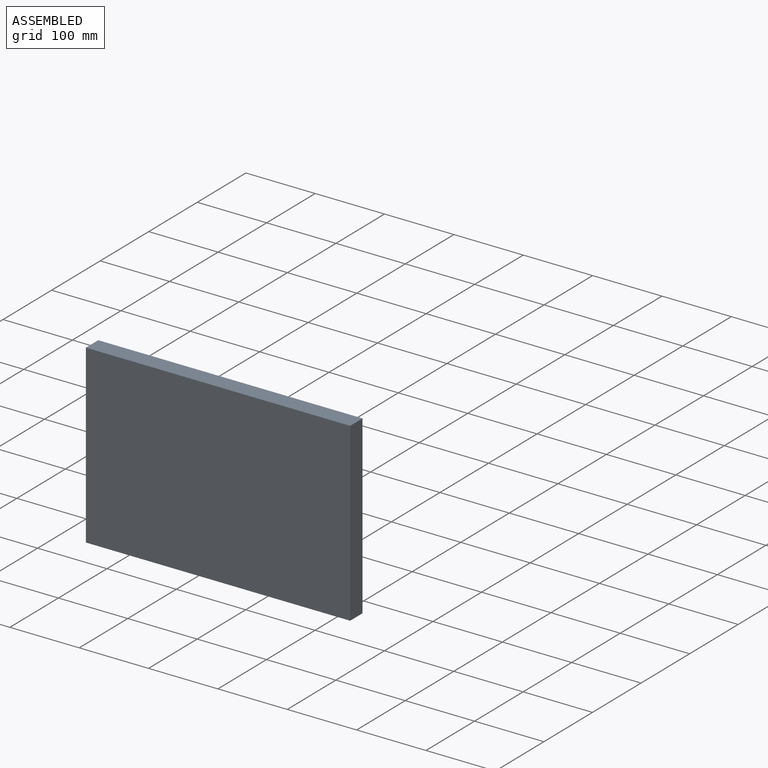
[diagram: assembled view]
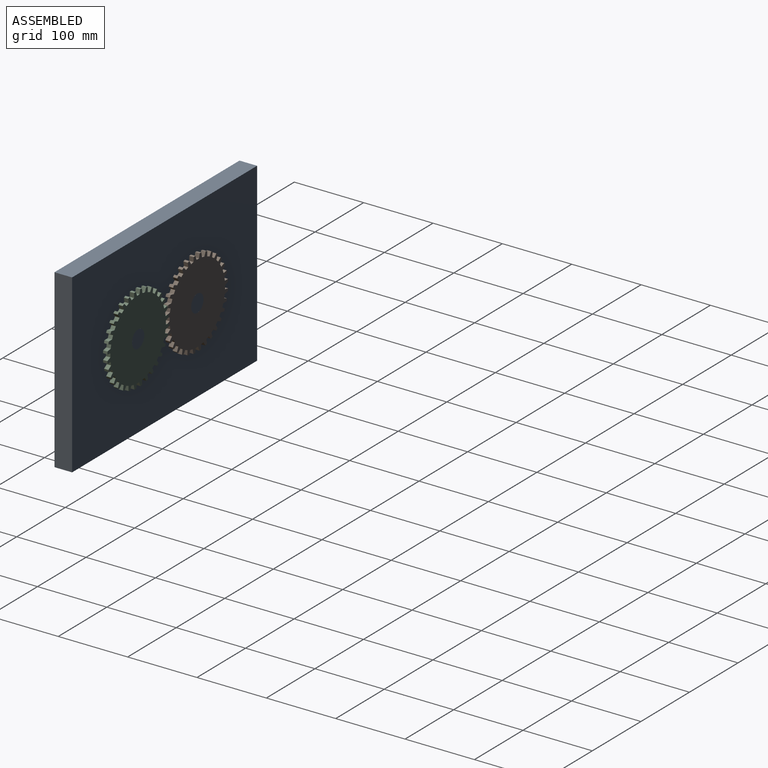
[diagram: assembled view, second angle]
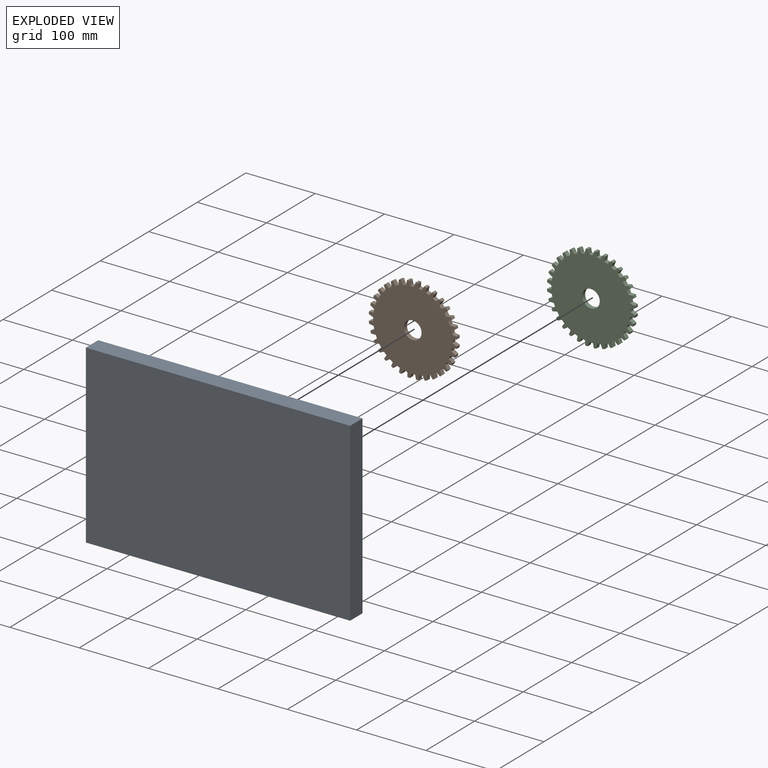
[diagram: exploded view]
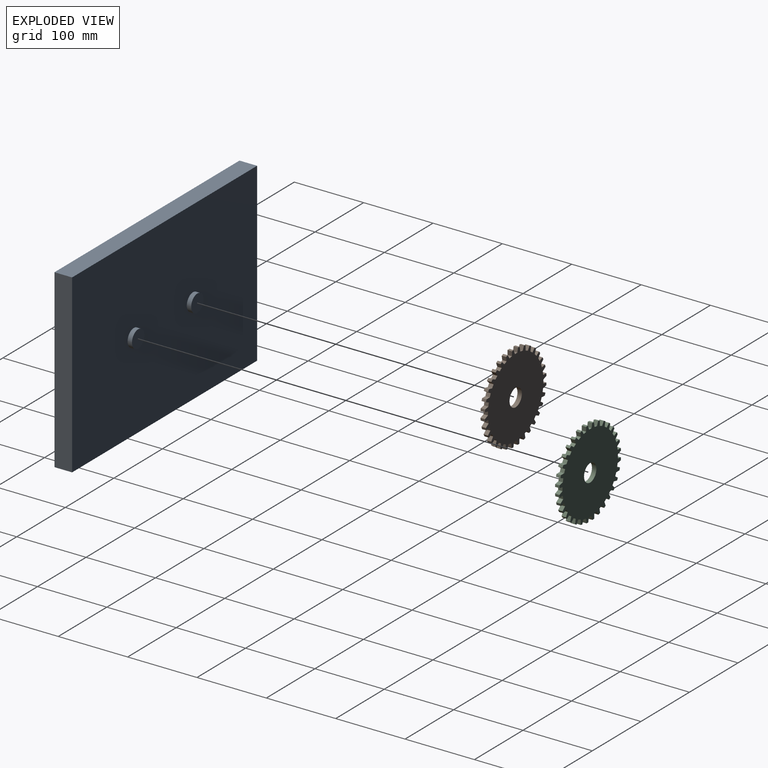
[diagram: exploded view, second angle]
ASSEMBLY  parts=3 mates=2
PART A: 10 faces, bbox 381x31.8x254 mm
  f0: plane 381x25.4mm, normal (0,0,1), area 9677.4mm2, adj f1,f3,f4,f5
  f1: plane 254x25.4mm, normal (-1,0,0), area 6451.6mm2, adj f0,f2,f4,f5
  f2: plane 381x25.4mm, normal (0,0,-1), area 9677.4mm2, adj f1,f3,f4,f5
  f3: plane 254x25.4mm, normal (1,0,0), area 6451.6mm2, adj f0,f2,f4,f5
  f4: plane 381x254mm, normal (0,-1,0), area 96774mm2, adj f0,f1,f2,f3
  f5: plane 381x254mm, normal (0,1,0), area 95760.6mm2, adj f0,f1,f2,f3,f7,f9
  f6: plane 25.4x25.4mm, normal (0,1,0), area 506.7mm2, adj f7
  f7: cylinder r=12.7mm len=25.4mm, axis (0,-1,0), area 506.7mm2, adj f5,f6
  f8: plane 25.4x25.4mm, normal (0,1,0), area 506.7mm2, adj f9
  f9: cylinder r=12.7mm len=25.4mm, axis (0,-1,0), area 506.7mm2, adj f5,f8
PART B: 131 faces, bbox 126.7x6.4x126.7 mm
  f0: plane 6.4x6.35mm, normal (1,0,0), area 40.6mm2, adj f1,f128,f129,f130
  f1: cylinder r=63.5mm len=6.35mm, axis (0,1,0), area 22.7mm2, adj f0,f2,f129,f130
  f2: plane 6.35x6.27mm, normal (-0.93,0,0.37), area 43mm2, adj f1,f3,f129,f130
  f3: plane 6.35x5.08mm, normal (0,0,1), area 32.3mm2, adj f2,f4,f129,f130
  f4: plane 6.35x6.27mm, normal (0.98,0,0.2), area 40.6mm2, adj f3,f5,f129,f130
  f5: cylinder r=63.5mm len=6.35mm, axis (0,1,0), area 22.7mm2, adj f4,f6,f129,f130
  f6: plane 6.65x6.35mm, normal (-0.98,0,0.19), area 43mm2, adj f5,f7,f129,f130
  f7: plane 6.35x4.98mm, normal (-0.2,0,0.98), area 32.3mm2, adj f6,f8,f129,f130
  f8: plane 6.35x5.91mm, normal (0.92,0,0.39), area 40.6mm2, adj f7,f9,f129,f130
  f9: cylinder r=63.5mm len=6.35mm, axis (0,1,0), area 22.7mm2, adj f8,f10,f129,f130
  f10: plane 6.77x6.35mm, normal (-1,0,-0.01), area 43mm2, adj f9,f11,f129,f130
  f11: plane 6.35x4.69mm, normal (-0.38,0,0.92), area 32.3mm2, adj f10,f12,f129,f130
  f12: plane 6.35x5.31mm, normal (0.83,0,0.56), area 40.6mm2, adj f11,f13,f129,f130
  f13: cylinder r=63.5mm len=6.35mm, axis (0,1,0), area 22.7mm2, adj f12,f14,f129,f130
  f14: plane 6.63x6.35mm, normal (-0.98,0,-0.2), area 43mm2, adj f13,f15,f129,f130
  f15: plane 6.35x4.22mm, normal (-0.56,0,0.83), area 32.3mm2, adj f14,f16,f129,f130
  f16: plane 6.35x4.54mm, normal (0.7,0,0.71), area 40.6mm2, adj f15,f17,f129,f130
  f17: cylinder r=63.5mm len=6.35mm, axis (0,1,0), area 22.7mm2, adj f16,f18,f129,f130
  f18: plane 6.35x6.23mm, normal (-0.92,0,-0.39), area 43mm2, adj f17,f19,f129,f130
  f19: plane 6.35x3.59mm, normal (-0.71,0,0.71), area 32.3mm2, adj f18,f20,f129,f130
  f20: plane 6.35x5.33mm, normal (0.55,0,0.83), area 40.6mm2, adj f19,f21,f129,f130
  f21: cylinder r=63.5mm len=6.35mm, axis (0,1,0), area 22.7mm2, adj f20,f22,f129,f130
  f22: plane 6.35x5.6mm, normal (-0.83,0,-0.56), area 43mm2, adj f21,f23,f129,f130
  f23: plane 6.35x4.22mm, normal (-0.83,0,0.56), area 32.3mm2, adj f22,f24,f129,f130
  f24: plane 6.35x5.92mm, normal (0.38,0,0.93), area 40.6mm2, adj f23,f25,f129,f130
  f25: cylinder r=63.5mm len=6.35mm, axis (0,1,0), area 22.7mm2, adj f24,f26,f129,f130
  f26: plane 6.35x4.83mm, normal (-0.7,0,-0.71), area 43mm2, adj f25,f27,f129,f130
  f27: plane 6.35x4.69mm, normal (-0.92,0,0.38), area 32.3mm2, adj f26,f28,f129,f130
  f28: plane 6.35x6.28mm, normal (0.19,0,0.98), area 40.6mm2, adj f27,f29,f129,f130
  f29: cylinder r=63.5mm len=6.35mm, axis (0,1,0), area 22.7mm2, adj f28,f30,f129,f130
  f30: plane 6.35x5.66mm, normal (-0.55,0,-0.84), area 43mm2, adj f29,f31,f129,f130
  f31: plane 6.35x4.98mm, normal (-0.98,0,0.2), area 32.3mm2, adj f30,f32,f129,f130
  f32: plane 6.4x6.35mm, normal (0,0,1), area 40.6mm2, adj f31,f33,f129,f130
  f33: cylinder r=63.5mm len=6.35mm, axis (0,1,0), area 22.7mm2, adj f32,f34,f129,f130
  f34: plane 6.35x6.27mm, normal (-0.37,0,-0.93), area 43mm2, adj f33,f35,f129,f130
  f35: plane 6.35x5.08mm, normal (-1,0,0), area 32.3mm2, adj f34,f36,f129,f130
  f36: plane 6.35x6.27mm, normal (-0.2,0,0.98), area 40.6mm2, adj f35,f37,f129,f130
  f37: cylinder r=63.5mm len=6.35mm, axis (0,1,0), area 22.7mm2, adj f36,f38,f129,f130
  f38: plane 6.65x6.35mm, normal (-0.19,0,-0.98), area 43mm2, adj f37,f39,f129,f130
  f39: plane 6.35x4.98mm, normal (-0.98,0,-0.2), area 32.3mm2, adj f38,f40,f129,f130
  f40: plane 6.35x5.91mm, normal (-0.39,0,0.92), area 40.6mm2, adj f39,f41,f129,f130
  f41: cylinder r=63.5mm len=6.35mm, axis (0,1,0), area 22.7mm2, adj f40,f42,f129,f130
  f42: plane 6.77x6.35mm, normal (0.01,0,-1), area 43mm2, adj f41,f43,f129,f130
  f43: plane 6.35x4.69mm, normal (-0.92,0,-0.38), area 32.3mm2, adj f42,f44,f129,f130
  f44: plane 6.35x5.31mm, normal (-0.56,0,0.83), area 40.6mm2, adj f43,f45,f129,f130
  f45: cylinder r=63.5mm len=6.35mm, axis (0,1,0), area 22.7mm2, adj f44,f46,f129,f130
  f46: plane 6.63x6.35mm, normal (0.2,0,-0.98), area 43mm2, adj f45,f47,f129,f130
  f47: plane 6.35x4.22mm, normal (-0.83,0,-0.56), area 32.3mm2, adj f46,f48,f129,f130
  f48: plane 6.35x4.54mm, normal (-0.71,0,0.7), area 40.6mm2, adj f47,f49,f129,f130
  f49: cylinder r=63.5mm len=6.35mm, axis (0,1,0), area 22.7mm2, adj f48,f50,f129,f130
  f50: plane 6.35x6.23mm, normal (0.39,0,-0.92), area 43mm2, adj f49,f51,f129,f130
  f51: plane 6.35x3.59mm, normal (-0.71,0,-0.71), area 32.3mm2, adj f50,f52,f129,f130
  f52: plane 6.35x5.33mm, normal (-0.83,0,0.55), area 40.6mm2, adj f51,f53,f129,f130
  f53: cylinder r=63.5mm len=6.35mm, axis (0,1,0), area 22.7mm2, adj f52,f54,f129,f130
  f54: plane 6.35x5.6mm, normal (0.56,0,-0.83), area 43mm2, adj f53,f55,f129,f130
  f55: plane 6.35x4.22mm, normal (-0.56,0,-0.83), area 32.3mm2, adj f54,f56,f129,f130
  f56: plane 6.35x5.92mm, normal (-0.93,0,0.38), area 40.6mm2, adj f55,f57,f129,f130
  f57: cylinder r=63.5mm len=6.35mm, axis (0,1,0), area 22.7mm2, adj f56,f58,f129,f130
  f58: plane 6.35x4.83mm, normal (0.71,0,-0.7), area 43mm2, adj f57,f59,f129,f130
  f59: plane 6.35x4.69mm, normal (-0.38,0,-0.92), area 32.3mm2, adj f58,f60,f129,f130
  f60: plane 6.35x6.28mm, normal (-0.98,0,0.19), area 40.6mm2, adj f59,f61,f129,f130
  f61: cylinder r=63.5mm len=6.35mm, axis (0,1,0), area 22.7mm2, adj f60,f62,f129,f130
  f62: plane 6.35x5.66mm, normal (0.84,0,-0.55), area 43mm2, adj f61,f63,f129,f130
  f63: plane 6.35x4.98mm, normal (-0.2,0,-0.98), area 32.3mm2, adj f62,f64,f129,f130
  f64: plane 6.4x6.35mm, normal (-1,0,0), area 40.6mm2, adj f63,f65,f129,f130
  f65: cylinder r=63.5mm len=6.35mm, axis (0,1,0), area 22.7mm2, adj f64,f66,f129,f130
  f66: plane 6.35x6.27mm, normal (0.93,0,-0.37), area 43mm2, adj f65,f67,f129,f130
  f67: plane 6.35x5.08mm, normal (0,0,-1), area 32.3mm2, adj f66,f68,f129,f130
  f68: plane 6.35x6.27mm, normal (-0.98,0,-0.2), area 40.6mm2, adj f67,f69,f129,f130
  f69: cylinder r=63.5mm len=6.35mm, axis (0,1,0), area 22.7mm2, adj f68,f70,f129,f130
  f70: plane 6.65x6.35mm, normal (0.98,0,-0.19), area 43mm2, adj f69,f71,f129,f130
  f71: plane 6.35x4.98mm, normal (0.2,0,-0.98), area 32.3mm2, adj f70,f72,f129,f130
  f72: plane 6.35x5.91mm, normal (-0.92,0,-0.39), area 40.6mm2, adj f71,f73,f129,f130
  f73: cylinder r=63.5mm len=6.35mm, axis (0,1,0), area 22.7mm2, adj f72,f74,f129,f130
  f74: plane 6.77x6.35mm, normal (1,0,0.01), area 43mm2, adj f73,f75,f129,f130
  f75: plane 6.35x4.69mm, normal (0.38,0,-0.92), area 32.3mm2, adj f74,f76,f129,f130
  f76: plane 6.35x5.31mm, normal (-0.83,0,-0.56), area 40.6mm2, adj f75,f77,f129,f130
  f77: cylinder r=63.5mm len=6.35mm, axis (0,1,0), area 22.7mm2, adj f76,f78,f129,f130
  f78: plane 6.63x6.35mm, normal (0.98,0,0.2), area 43mm2, adj f77,f79,f129,f130
  f79: plane 6.35x4.22mm, normal (0.56,0,-0.83), area 32.3mm2, adj f78,f80,f129,f130
  f80: plane 6.35x4.54mm, normal (-0.7,0,-0.71), area 40.6mm2, adj f79,f81,f129,f130
  f81: cylinder r=63.5mm len=6.35mm, axis (0,1,0), area 22.7mm2, adj f80,f82,f129,f130
  f82: plane 6.35x6.23mm, normal (0.92,0,0.39), area 43mm2, adj f81,f83,f129,f130
  f83: plane 6.35x3.59mm, normal (0.71,0,-0.71), area 32.3mm2, adj f82,f84,f129,f130
  f84: plane 6.35x5.33mm, normal (-0.55,0,-0.83), area 40.6mm2, adj f83,f85,f129,f130
  f85: cylinder r=63.5mm len=6.35mm, axis (0,1,0), area 22.7mm2, adj f84,f86,f129,f130
  f86: plane 6.35x5.6mm, normal (0.83,0,0.56), area 43mm2, adj f85,f87,f129,f130
  f87: plane 6.35x4.22mm, normal (0.83,0,-0.56), area 32.3mm2, adj f86,f88,f129,f130
  f88: plane 6.35x5.92mm, normal (-0.38,0,-0.93), area 40.6mm2, adj f87,f89,f129,f130
  f89: cylinder r=63.5mm len=6.35mm, axis (0,1,0), area 22.7mm2, adj f88,f90,f129,f130
  f90: plane 6.35x4.83mm, normal (0.7,0,0.71), area 43mm2, adj f89,f91,f129,f130
  f91: plane 6.35x4.69mm, normal (0.92,0,-0.38), area 32.3mm2, adj f90,f92,f129,f130
  f92: plane 6.35x6.28mm, normal (-0.19,0,-0.98), area 40.6mm2, adj f91,f93,f129,f130
  f93: cylinder r=63.5mm len=6.35mm, axis (0,1,0), area 22.7mm2, adj f92,f94,f129,f130
  f94: plane 6.35x5.66mm, normal (0.55,0,0.84), area 43mm2, adj f93,f95,f129,f130
  f95: plane 6.35x4.98mm, normal (0.98,0,-0.2), area 32.3mm2, adj f94,f96,f129,f130
  f96: plane 6.4x6.35mm, normal (0,0,-1), area 40.6mm2, adj f95,f97,f129,f130
  f97: cylinder r=63.5mm len=6.35mm, axis (0,1,0), area 22.7mm2, adj f96,f98,f129,f130
  f98: plane 6.35x6.27mm, normal (0.37,0,0.93), area 43mm2, adj f97,f99,f129,f130
  f99: plane 6.35x5.08mm, normal (1,0,0), area 32.3mm2, adj f98,f100,f129,f130
  f100: plane 6.35x6.27mm, normal (0.2,0,-0.98), area 40.6mm2, adj f99,f101,f129,f130
  f101: cylinder r=63.5mm len=6.35mm, axis (0,1,0), area 22.7mm2, adj f100,f102,f129,f130
  f102: plane 6.65x6.35mm, normal (0.19,0,0.98), area 43mm2, adj f101,f103,f129,f130
  f103: plane 6.35x4.98mm, normal (0.98,0,0.2), area 32.3mm2, adj f102,f104,f129,f130
  f104: plane 6.35x5.91mm, normal (0.39,0,-0.92), area 40.6mm2, adj f103,f105,f129,f130
  f105: cylinder r=63.5mm len=6.35mm, axis (0,1,0), area 22.7mm2, adj f104,f106,f129,f130
  f106: plane 6.77x6.35mm, normal (-0.01,0,1), area 43mm2, adj f105,f107,f129,f130
  f107: plane 6.35x4.69mm, normal (0.92,0,0.38), area 32.3mm2, adj f106,f108,f129,f130
  f108: plane 6.35x5.31mm, normal (0.56,0,-0.83), area 40.6mm2, adj f107,f109,f129,f130
  f109: cylinder r=63.5mm len=6.35mm, axis (0,1,0), area 22.7mm2, adj f108,f110,f129,f130
  f110: plane 6.63x6.35mm, normal (-0.2,0,0.98), area 43mm2, adj f109,f111,f129,f130
  f111: plane 6.35x4.22mm, normal (0.83,0,0.56), area 32.3mm2, adj f110,f112,f129,f130
  f112: plane 6.35x4.54mm, normal (0.71,0,-0.7), area 40.6mm2, adj f111,f113,f129,f130
  f113: cylinder r=63.5mm len=6.35mm, axis (0,1,0), area 22.7mm2, adj f112,f114,f129,f130
  f114: plane 6.35x6.23mm, normal (-0.39,0,0.92), area 43mm2, adj f113,f115,f129,f130
  f115: plane 6.35x3.59mm, normal (0.71,0,0.71), area 32.3mm2, adj f114,f116,f129,f130
  f116: plane 6.35x5.33mm, normal (0.83,0,-0.55), area 40.6mm2, adj f115,f117,f129,f130
  f117: cylinder r=63.5mm len=6.35mm, axis (0,1,0), area 22.7mm2, adj f116,f118,f129,f130
  f118: plane 6.35x5.6mm, normal (-0.56,0,0.83), area 43mm2, adj f117,f119,f129,f130
  f119: plane 6.35x4.22mm, normal (0.56,0,0.83), area 32.3mm2, adj f118,f120,f129,f130
  f120: plane 6.35x5.92mm, normal (0.93,0,-0.38), area 40.6mm2, adj f119,f121,f129,f130
  f121: cylinder r=63.5mm len=6.35mm, axis (0,1,0), area 22.7mm2, adj f120,f122,f129,f130
  f122: plane 6.35x4.83mm, normal (-0.71,0,0.7), area 43mm2, adj f121,f123,f129,f130
  f123: plane 6.35x4.69mm, normal (0.38,0,0.92), area 32.3mm2, adj f122,f124,f129,f130
  f124: plane 6.35x6.28mm, normal (0.98,0,-0.19), area 40.6mm2, adj f123,f125,f129,f130
  f125: cylinder r=63.5mm len=6.35mm, axis (0,1,0), area 22.7mm2, adj f124,f126,f129,f130
  f126: plane 6.35x5.66mm, normal (-0.84,0,0.55), area 43mm2, adj f125,f128,f129,f130
  f127: cylinder r=12.7mm len=25.4mm, axis (0,1,0), area 506.7mm2, adj f129,f130
  f128: plane 6.35x4.98mm, normal (0.2,0,0.98), area 32.3mm2, adj f0,f126,f129,f130
  f129: plane 126.69x126.69mm, normal (0,-1,0), area 10729.6mm2, adj f0,f1,f2,f3,f4,f5,f6,f7
  f130: plane 126.69x126.69mm, normal (0,1,0), area 10729.6mm2, adj f0,f1,f2,f3,f4,f5,f6,f7
PART C: same geometry as B
PLACE A t=(15.04,58.87,-84.04)mm fixed
PLACE B rot(axis=(0,1,0),123.5deg) t=(-21.72,65.22,-79.09)mm
PLACE C rot(axis=(0,-1,0),123.5deg) t=(100.2,65.22,-79.09)mm
MATE revolute B.f127 <-> A.f7  axis (0,1,0) through (-21.72,65.22,-79.09)mm
MATE revolute A.f9 <-> C.f127  axis (0,1,0) through (100.2,65.22,-79.09)mm
